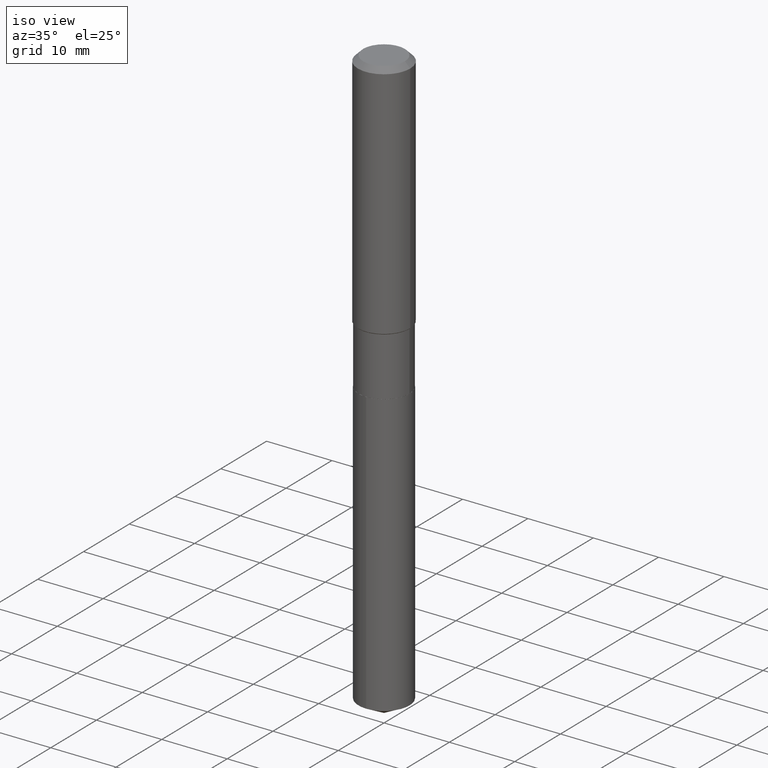
[diagram: clean part render]
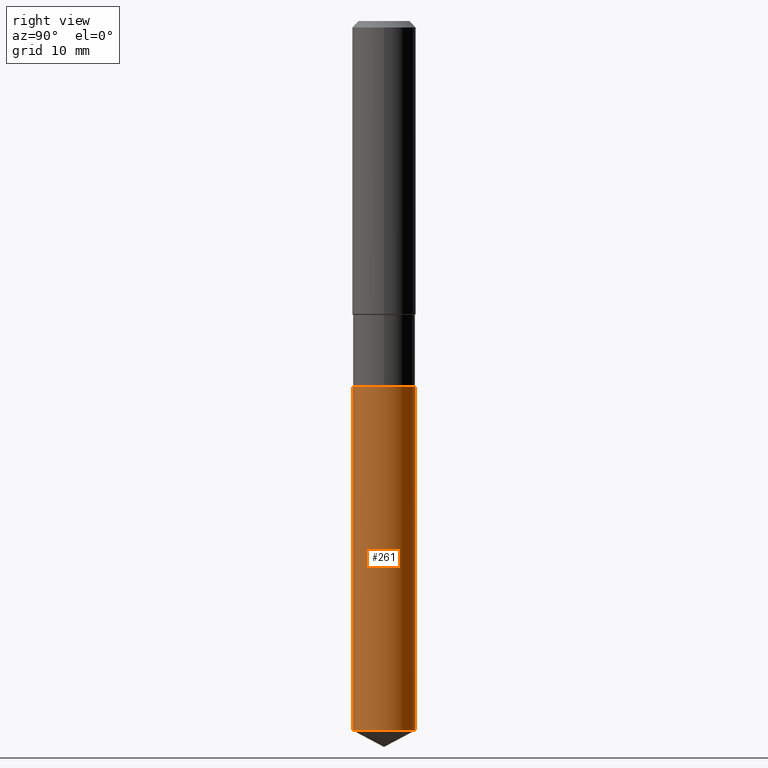
[diagram: tour spotlight — one face highlighted and labeled with its STEP entity id]
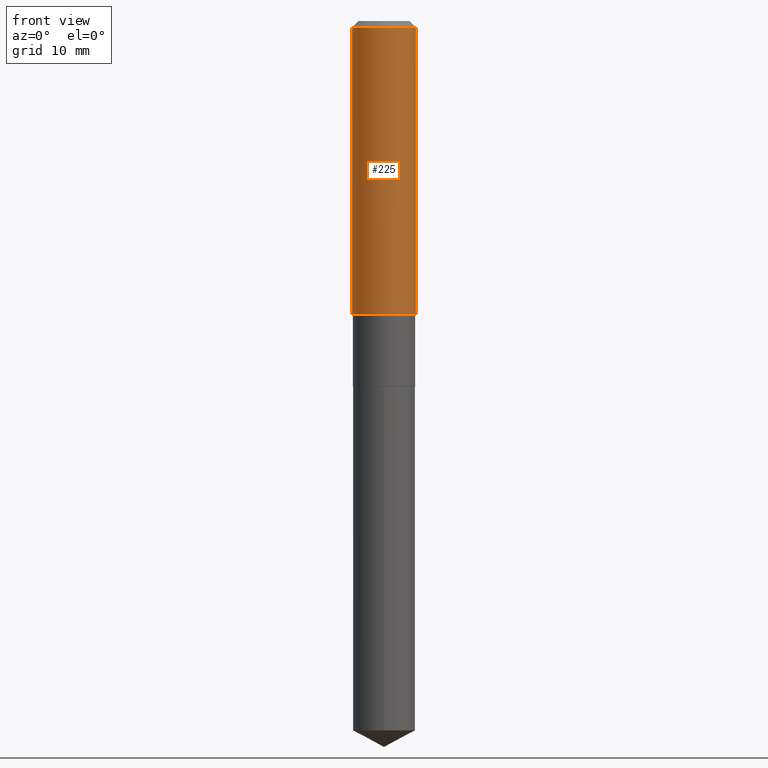
[diagram: tour spotlight — one face highlighted and labeled with its STEP entity id]
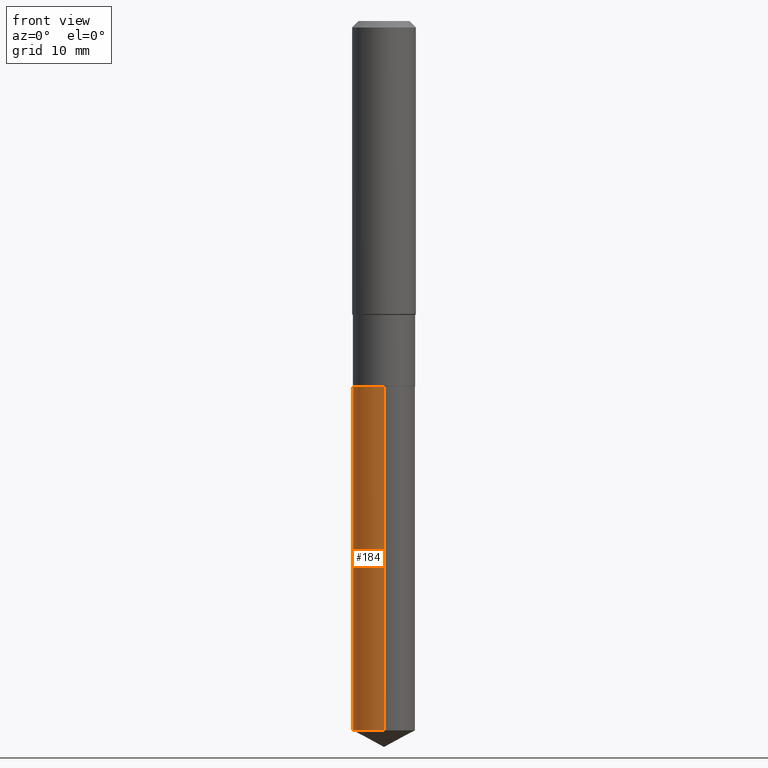
[diagram: tour spotlight — one face highlighted and labeled with its STEP entity id]
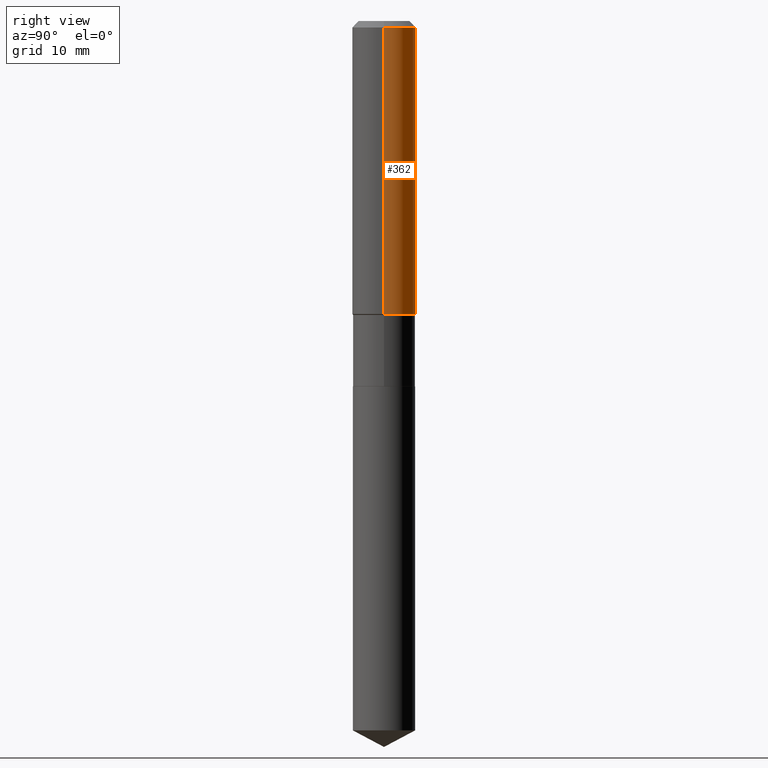
[diagram: tour spotlight — one face highlighted and labeled with its STEP entity id]
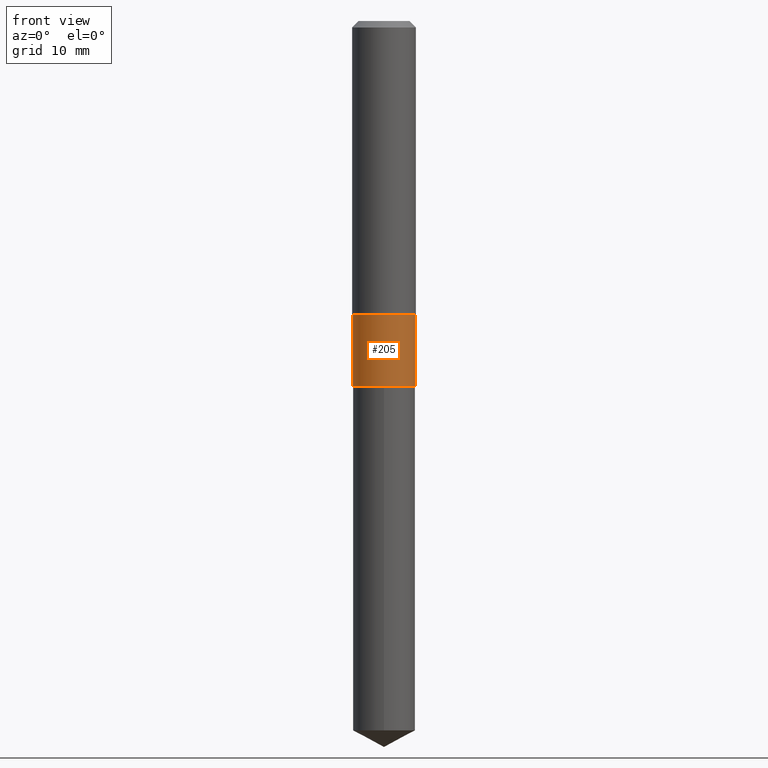
[diagram: tour spotlight — one face highlighted and labeled with its STEP entity id]
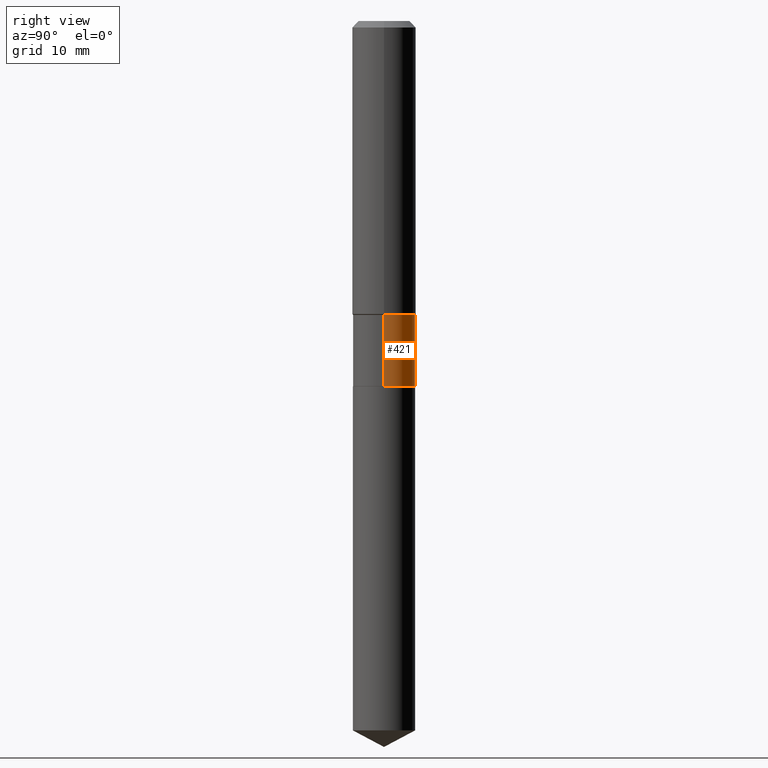
[diagram: tour spotlight — one face highlighted and labeled with its STEP entity id]
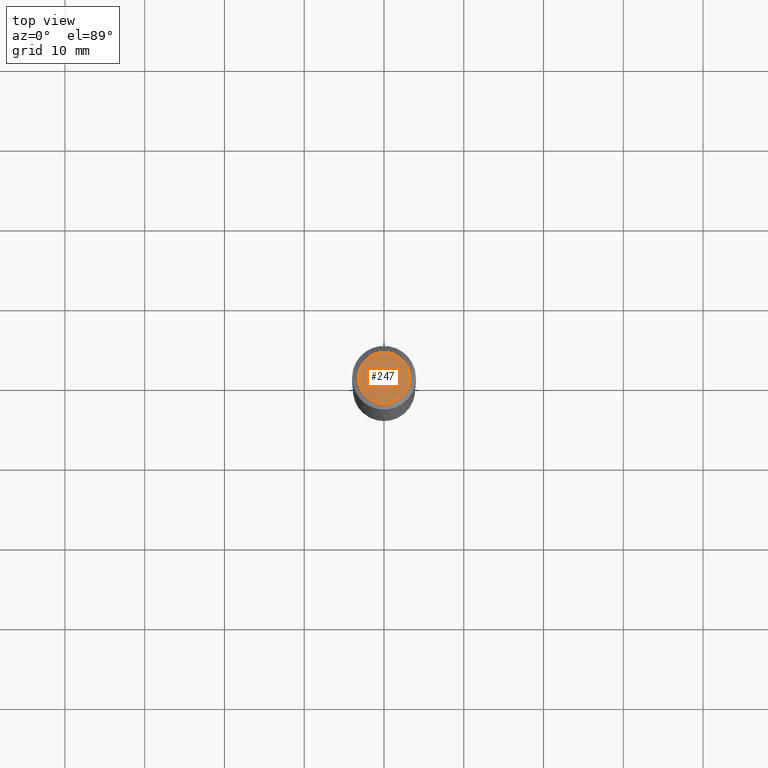
[diagram: tour spotlight — one face highlighted and labeled with its STEP entity id]
A machine part: a face-by-face anatomy tour. The part has 17 B-rep faces; the first image is the clean iso view, then the 7 largest visible faces are spotlighted one at a time (largest first), each with its STEP entity span.

Face 1 — right view, entity #261. In plain terms, the highlighted cylindrical surface (edge-blend (fillet) strip) has radius 3.9002 mm, axis along (-0, 0, 1).
Definition (entity closure, byte-faithful):
#22 = DIRECTION ( 'NONE',  ( -6.982962677686265133E-15, -1.000000000000000000, 3.558252026915353702E-15 ) ) ;
#34 = CARTESIAN_POINT ( 'NONE',  ( 4.409669351313038346E-29, -6.295839150201959750E-15, -1.803200000000000136 ) ) ;
#76 = CARTESIAN_POINT ( 'NONE',  ( 1.091038370759677758E-15, 0.1535499999999936915, -1.803200000000000580 ) ) ;
#98 = AXIS2_PLACEMENT_3D ( 'NONE', #206, #349, #22 ) ;
#105 = EDGE_CURVE ( 'NONE', #440, #300, #265, .T. ) ;
#112 = CARTESIAN_POINT ( 'NONE',  ( -1.072233919158640357E-15, -0.1535500000000122045, -3.501056016768379742 ) ) ;
#113 = DIRECTION ( 'NONE',  ( -2.445453554861553701E-29, 3.491503179606567708E-15, 1.000000000000000000 ) ) ;
#147 = AXIS2_PLACEMENT_3D ( 'NONE', #474, #438, #397 ) ;
#148 = AXIS2_PLACEMENT_3D ( 'NONE', #34, #449, #255 ) ;
#151 = ORIENTED_EDGE ( 'NONE', *, *, #187, .F. ) ;
#155 = ORIENTED_EDGE ( 'NONE', *, *, #307, .F. ) ;
#159 = LINE ( 'NONE', #460, #413 ) ;
#164 = LINE ( 'NONE', #76, #251 ) ;
#187 = EDGE_CURVE ( 'NONE', #274, #389, #291, .T. ) ;
#206 = CARTESIAN_POINT ( 'NONE',  ( 8.561697383162351005E-29, -1.222390883126290210E-14, -3.501056016768380186 ) ) ;
#236 = EDGE_LOOP ( 'NONE', ( #429, #312, #151, #155 ) ) ;
#244 = EDGE_CURVE ( 'NONE', #300, #389, #164, .T. ) ;
#251 = VECTOR ( 'NONE', #113, 39.37007874015748143 ) ;
#255 = DIRECTION ( 'NONE',  ( -6.982962677686266711E-15, -1.000000000000000000, 3.558252026915354491E-15 ) ) ;
#261 = ADVANCED_FACE ( 'NONE', ( #488 ), #486, .T. ) ;
#265 = CIRCLE ( 'NONE', #98, 0.1535500000000000198 ) ;
#274 = VERTEX_POINT ( 'NONE', #284 ) ;
#284 = CARTESIAN_POINT ( 'NONE',  ( -1.072233919158681970E-15, -0.1535500000000062926, -1.803199999999999470 ) ) ;
#291 = CIRCLE ( 'NONE', #147, 0.1535499999999999921 ) ;
#300 = VERTEX_POINT ( 'NONE', #347 ) ;
#307 = EDGE_CURVE ( 'NONE', #440, #274, #159, .T. ) ;
#312 = ORIENTED_EDGE ( 'NONE', *, *, #244, .T. ) ;
#328 = CARTESIAN_POINT ( 'NONE',  ( 1.091038370759719765E-15, 0.1535499999999937193, -1.803200000000000580 ) ) ;
#347 = CARTESIAN_POINT ( 'NONE',  ( 1.091038370759719173E-15, 0.1535499999999877796, -3.501056016768380630 ) ) ;
#349 = DIRECTION ( 'NONE',  ( -2.445453554861553701E-29, 3.491503179606567708E-15, 1.000000000000000000 ) ) ;
#389 = VERTEX_POINT ( 'NONE', #328 ) ;
#397 = DIRECTION ( 'NONE',  ( -6.982962677686266711E-15, -1.000000000000000000, 3.558252026915354491E-15 ) ) ;
#413 = VECTOR ( 'NONE', #431, 39.37007874015748143 ) ;
#429 = ORIENTED_EDGE ( 'NONE', *, *, #105, .T. ) ;
#431 = DIRECTION ( 'NONE',  ( -2.445453554861553701E-29, 3.491503179606567708E-15, 1.000000000000000000 ) ) ;
#438 = DIRECTION ( 'NONE',  ( -2.445453554861553701E-29, 3.491503179606567708E-15, 1.000000000000000000 ) ) ;
#440 = VERTEX_POINT ( 'NONE', #112 ) ;
#449 = DIRECTION ( 'NONE',  ( -2.445453554861553701E-29, 3.491503179606567708E-15, 1.000000000000000000 ) ) ;
#460 = CARTESIAN_POINT ( 'NONE',  ( -1.072233919158681970E-15, -0.1535500000000062926, -1.803199999999999470 ) ) ;
#474 = CARTESIAN_POINT ( 'NONE',  ( 4.409669351313038346E-29, -6.295839150201959750E-15, -1.803200000000000136 ) ) ;
#486 = CYLINDRICAL_SURFACE ( 'NONE', #148, 0.1535499999999999921 ) ;
#488 = FACE_OUTER_BOUND ( 'NONE', #236, .T. ) ;

Face 2 — front view, entity #225. In plain terms, the highlighted cylindrical surface (edge-blend (fillet) strip) has radius 4.0005 mm, axis along (-0, 0, 1).
Definition (entity closure, byte-faithful):
#25 = CARTESIAN_POINT ( 'NONE',  ( 0.1575000000000001676, -6.148673211769718717E-15, -1.446050000000000058 ) ) ;
#47 = CARTESIAN_POINT ( 'NONE',  ( 3.536270167184016952E-29, -5.048856590034130447E-15, -1.446050000000000058 ) ) ;
#50 = ORIENTED_EDGE ( 'NONE', *, *, #405, .T. ) ;
#55 = AXIS2_PLACEMENT_3D ( 'NONE', #47, #78, #380 ) ;
#61 = EDGE_CURVE ( 'NONE', #242, #282, #272, .T. ) ;
#71 = ORIENTED_EDGE ( 'NONE', *, *, #72, .T. ) ;
#72 = EDGE_CURVE ( 'NONE', #298, #444, #278, .T. ) ;
#78 = DIRECTION ( 'NONE',  ( -2.445468806185136597E-29, 3.491481338843145583E-15, 1.000000000000000000 ) ) ;
#91 = AXIS2_PLACEMENT_3D ( 'NONE', #366, #327, #111 ) ;
#111 = DIRECTION ( 'NONE',  ( 1.000000000000000000, -6.982962677686267499E-15, 4.876176775795936353E-29 ) ) ;
#133 = CARTESIAN_POINT ( 'NONE',  ( 7.703226739483226971E-31, -1.099816621735597538E-16, -0.03150000000000019451 ) ) ;
#135 = CARTESIAN_POINT ( 'NONE',  ( -0.1575000000000000011, -1.460314317281686560E-15, -0.03150000000000019451 ) ) ;
#142 = CIRCLE ( 'NONE', #193, 0.1575000000000000011 ) ;
#190 = CYLINDRICAL_SURFACE ( 'NONE', #91, 0.1575000000000000844 ) ;
#193 = AXIS2_PLACEMENT_3D ( 'NONE', #133, #394, #480 ) ;
#212 = VECTOR ( 'NONE', #342, 39.37007874015748143 ) ;
#224 = FACE_OUTER_BOUND ( 'NONE', #325, .T. ) ;
#225 = ADVANCED_FACE ( 'NONE', ( #224 ), #190, .T. ) ;
#235 = CARTESIAN_POINT ( 'NONE',  ( -0.1575000000000000844, 1.119104808822158392E-15, -7.747322767151481189E-30 ) ) ;
#242 = VERTEX_POINT ( 'NONE', #369 ) ;
#272 = LINE ( 'NONE', #235, #418 ) ;
#277 = EDGE_CURVE ( 'NONE', #282, #444, #142, .T. ) ;
#278 = LINE ( 'NONE', #388, #212 ) ;
#282 = VERTEX_POINT ( 'NONE', #135 ) ;
#297 = CARTESIAN_POINT ( 'NONE',  ( 0.1575000000000000011, -1.209798283909146741E-15, -0.03150000000000019451 ) ) ;
#298 = VERTEX_POINT ( 'NONE', #25 ) ;
#325 = EDGE_LOOP ( 'NONE', ( #477, #50, #71, #391 ) ) ;
#327 = DIRECTION ( 'NONE',  ( -2.445468806185136597E-29, 3.491481338843145583E-15, 1.000000000000000000 ) ) ;
#342 = DIRECTION ( 'NONE',  ( -2.445468806185136877E-29, 3.491481338843145188E-15, 1.000000000000000000 ) ) ;
#366 = CARTESIAN_POINT ( 'NONE',  ( 0.000000000000000000, 0.000000000000000000, 0.000000000000000000 ) ) ;
#369 = CARTESIAN_POINT ( 'NONE',  ( -0.1575000000000001676, -3.929751781211971266E-15, -1.446050000000000058 ) ) ;
#380 = DIRECTION ( 'NONE',  ( 1.000000000000000000, -6.982962677686267499E-15, 0.000000000000000000 ) ) ;
#388 = CARTESIAN_POINT ( 'NONE',  ( 0.1575000000000000844, -1.099816621735587677E-15, 7.679978421878603638E-30 ) ) ;
#391 = ORIENTED_EDGE ( 'NONE', *, *, #277, .F. ) ;
#394 = DIRECTION ( 'NONE',  ( -2.445468806185136597E-29, 3.491481338843145583E-15, 1.000000000000000000 ) ) ;
#405 = EDGE_CURVE ( 'NONE', #242, #298, #456, .T. ) ;
#418 = VECTOR ( 'NONE', #479, 39.37007874015748143 ) ;
#444 = VERTEX_POINT ( 'NONE', #297 ) ;
#456 = CIRCLE ( 'NONE', #55, 0.1575000000000001676 ) ;
#477 = ORIENTED_EDGE ( 'NONE', *, *, #61, .F. ) ;
#479 = DIRECTION ( 'NONE',  ( -2.445468806185136877E-29, 3.491481338843145188E-15, 1.000000000000000000 ) ) ;
#480 = DIRECTION ( 'NONE',  ( 1.000000000000000000, -6.982962677686265922E-15, 0.000000000000000000 ) ) ;

Face 3 — front view, entity #184. In plain terms, the highlighted cylindrical surface (edge-blend (fillet) strip) has radius 3.9002 mm, axis along (-0, 0, 1).
Definition (entity closure, byte-faithful):
#10 = CARTESIAN_POINT ( 'NONE',  ( 8.561697383162351005E-29, -1.222390883126290210E-14, -3.501056016768380186 ) ) ;
#24 = CYLINDRICAL_SURFACE ( 'NONE', #354, 0.1535499999999999921 ) ;
#56 = FACE_OUTER_BOUND ( 'NONE', #241, .T. ) ;
#76 = CARTESIAN_POINT ( 'NONE',  ( 1.091038370759677758E-15, 0.1535499999999936915, -1.803200000000000580 ) ) ;
#81 = CIRCLE ( 'NONE', #130, 0.1535500000000000198 ) ;
#97 = DIRECTION ( 'NONE',  ( -6.982962677686266711E-15, -1.000000000000000000, 3.558252026915354491E-15 ) ) ;
#112 = CARTESIAN_POINT ( 'NONE',  ( -1.072233919158640357E-15, -0.1535500000000122045, -3.501056016768379742 ) ) ;
#113 = DIRECTION ( 'NONE',  ( -2.445453554861553701E-29, 3.491503179606567708E-15, 1.000000000000000000 ) ) ;
#118 = ORIENTED_EDGE ( 'NONE', *, *, #314, .F. ) ;
#122 = DIRECTION ( 'NONE',  ( -6.982962677686266711E-15, -1.000000000000000000, 3.558252026915354491E-15 ) ) ;
#130 = AXIS2_PLACEMENT_3D ( 'NONE', #10, #308, #171 ) ;
#150 = ORIENTED_EDGE ( 'NONE', *, *, #301, .T. ) ;
#159 = LINE ( 'NONE', #460, #413 ) ;
#164 = LINE ( 'NONE', #76, #251 ) ;
#171 = DIRECTION ( 'NONE',  ( -6.982962677686265133E-15, -1.000000000000000000, 3.558252026915353702E-15 ) ) ;
#176 = CARTESIAN_POINT ( 'NONE',  ( 4.409669351313038346E-29, -6.295839150201959750E-15, -1.803200000000000136 ) ) ;
#184 = ADVANCED_FACE ( 'NONE', ( #56 ), #24, .T. ) ;
#204 = CARTESIAN_POINT ( 'NONE',  ( 4.409669351313038346E-29, -6.295839150201959750E-15, -1.803200000000000136 ) ) ;
#228 = AXIS2_PLACEMENT_3D ( 'NONE', #204, #451, #97 ) ;
#241 = EDGE_LOOP ( 'NONE', ( #376, #150, #458, #118 ) ) ;
#244 = EDGE_CURVE ( 'NONE', #300, #389, #164, .T. ) ;
#251 = VECTOR ( 'NONE', #113, 39.37007874015748143 ) ;
#274 = VERTEX_POINT ( 'NONE', #284 ) ;
#284 = CARTESIAN_POINT ( 'NONE',  ( -1.072233919158681970E-15, -0.1535500000000062926, -1.803199999999999470 ) ) ;
#300 = VERTEX_POINT ( 'NONE', #347 ) ;
#301 = EDGE_CURVE ( 'NONE', #300, #440, #81, .T. ) ;
#307 = EDGE_CURVE ( 'NONE', #440, #274, #159, .T. ) ;
#308 = DIRECTION ( 'NONE',  ( -2.445453554861553701E-29, 3.491503179606567708E-15, 1.000000000000000000 ) ) ;
#314 = EDGE_CURVE ( 'NONE', #389, #274, #356, .T. ) ;
#315 = DIRECTION ( 'NONE',  ( -2.445453554861553701E-29, 3.491503179606567708E-15, 1.000000000000000000 ) ) ;
#328 = CARTESIAN_POINT ( 'NONE',  ( 1.091038370759719765E-15, 0.1535499999999937193, -1.803200000000000580 ) ) ;
#347 = CARTESIAN_POINT ( 'NONE',  ( 1.091038370759719173E-15, 0.1535499999999877796, -3.501056016768380630 ) ) ;
#354 = AXIS2_PLACEMENT_3D ( 'NONE', #176, #315, #122 ) ;
#356 = CIRCLE ( 'NONE', #228, 0.1535499999999999921 ) ;
#376 = ORIENTED_EDGE ( 'NONE', *, *, #244, .F. ) ;
#389 = VERTEX_POINT ( 'NONE', #328 ) ;
#413 = VECTOR ( 'NONE', #431, 39.37007874015748143 ) ;
#431 = DIRECTION ( 'NONE',  ( -2.445453554861553701E-29, 3.491503179606567708E-15, 1.000000000000000000 ) ) ;
#440 = VERTEX_POINT ( 'NONE', #112 ) ;
#451 = DIRECTION ( 'NONE',  ( -2.445453554861553701E-29, 3.491503179606567708E-15, 1.000000000000000000 ) ) ;
#458 = ORIENTED_EDGE ( 'NONE', *, *, #307, .T. ) ;
#460 = CARTESIAN_POINT ( 'NONE',  ( -1.072233919158681970E-15, -0.1535500000000062926, -1.803199999999999470 ) ) ;

Face 4 — right view, entity #362. In plain terms, the highlighted cylindrical surface (edge-blend (fillet) strip) has radius 4.0005 mm, axis along (-0, 0, 1).
Definition (entity closure, byte-faithful):
#12 = AXIS2_PLACEMENT_3D ( 'NONE', #316, #89, #128 ) ;
#17 = DIRECTION ( 'NONE',  ( 1.000000000000000000, -6.982962677686267499E-15, 0.000000000000000000 ) ) ;
#18 = ORIENTED_EDGE ( 'NONE', *, *, #163, .F. ) ;
#25 = CARTESIAN_POINT ( 'NONE',  ( 0.1575000000000001676, -6.148673211769718717E-15, -1.446050000000000058 ) ) ;
#46 = ORIENTED_EDGE ( 'NONE', *, *, #72, .F. ) ;
#51 = FACE_OUTER_BOUND ( 'NONE', #426, .T. ) ;
#61 = EDGE_CURVE ( 'NONE', #242, #282, #272, .T. ) ;
#72 = EDGE_CURVE ( 'NONE', #298, #444, #278, .T. ) ;
#89 = DIRECTION ( 'NONE',  ( -2.445468806185136597E-29, 3.491481338843145583E-15, 1.000000000000000000 ) ) ;
#128 = DIRECTION ( 'NONE',  ( 1.000000000000000000, -6.982962677686265922E-15, 0.000000000000000000 ) ) ;
#135 = CARTESIAN_POINT ( 'NONE',  ( -0.1575000000000000011, -1.460314317281686560E-15, -0.03150000000000019451 ) ) ;
#143 = EDGE_CURVE ( 'NONE', #298, #242, #439, .T. ) ;
#163 = EDGE_CURVE ( 'NONE', #444, #282, #318, .T. ) ;
#207 = DIRECTION ( 'NONE',  ( -2.445468806185136597E-29, 3.491481338843145583E-15, 1.000000000000000000 ) ) ;
#212 = VECTOR ( 'NONE', #342, 39.37007874015748143 ) ;
#221 = AXIS2_PLACEMENT_3D ( 'NONE', #434, #207, #17 ) ;
#226 = DIRECTION ( 'NONE',  ( -2.445468806185136597E-29, 3.491481338843145583E-15, 1.000000000000000000 ) ) ;
#235 = CARTESIAN_POINT ( 'NONE',  ( -0.1575000000000000844, 1.119104808822158392E-15, -7.747322767151481189E-30 ) ) ;
#242 = VERTEX_POINT ( 'NONE', #369 ) ;
#272 = LINE ( 'NONE', #235, #418 ) ;
#278 = LINE ( 'NONE', #388, #212 ) ;
#282 = VERTEX_POINT ( 'NONE', #135 ) ;
#295 = ORIENTED_EDGE ( 'NONE', *, *, #61, .T. ) ;
#297 = CARTESIAN_POINT ( 'NONE',  ( 0.1575000000000000011, -1.209798283909146741E-15, -0.03150000000000019451 ) ) ;
#298 = VERTEX_POINT ( 'NONE', #25 ) ;
#316 = CARTESIAN_POINT ( 'NONE',  ( 7.703226739483226971E-31, -1.099816621735597538E-16, -0.03150000000000019451 ) ) ;
#318 = CIRCLE ( 'NONE', #12, 0.1575000000000000011 ) ;
#333 = DIRECTION ( 'NONE',  ( 1.000000000000000000, -6.982962677686267499E-15, 4.876176775795936353E-29 ) ) ;
#336 = ORIENTED_EDGE ( 'NONE', *, *, #143, .T. ) ;
#342 = DIRECTION ( 'NONE',  ( -2.445468806185136877E-29, 3.491481338843145188E-15, 1.000000000000000000 ) ) ;
#344 = CYLINDRICAL_SURFACE ( 'NONE', #355, 0.1575000000000000844 ) ;
#355 = AXIS2_PLACEMENT_3D ( 'NONE', #416, #226, #333 ) ;
#362 = ADVANCED_FACE ( 'NONE', ( #51 ), #344, .T. ) ;
#369 = CARTESIAN_POINT ( 'NONE',  ( -0.1575000000000001676, -3.929751781211971266E-15, -1.446050000000000058 ) ) ;
#388 = CARTESIAN_POINT ( 'NONE',  ( 0.1575000000000000844, -1.099816621735587677E-15, 7.679978421878603638E-30 ) ) ;
#416 = CARTESIAN_POINT ( 'NONE',  ( 0.000000000000000000, 0.000000000000000000, 0.000000000000000000 ) ) ;
#418 = VECTOR ( 'NONE', #479, 39.37007874015748143 ) ;
#426 = EDGE_LOOP ( 'NONE', ( #336, #295, #18, #46 ) ) ;
#434 = CARTESIAN_POINT ( 'NONE',  ( 3.536270167184016952E-29, -5.048856590034130447E-15, -1.446050000000000058 ) ) ;
#439 = CIRCLE ( 'NONE', #221, 0.1575000000000001676 ) ;
#444 = VERTEX_POINT ( 'NONE', #297 ) ;
#479 = DIRECTION ( 'NONE',  ( -2.445468806185136877E-29, 3.491481338843145188E-15, 1.000000000000000000 ) ) ;

Face 5 — front view, entity #205. In plain terms, the highlighted cylindrical surface (edge-blend (fillet) strip) has radius 3.9002 mm, axis along (-0, 0, 1).
Definition (entity closure, byte-faithful):
#1 = EDGE_CURVE ( 'NONE', #166, #127, #35, .T. ) ;
#35 = CIRCLE ( 'NONE', #102, 0.1535499999999999365 ) ;
#43 = ORIENTED_EDGE ( 'NONE', *, *, #407, .T. ) ;
#45 = DIRECTION ( 'NONE',  ( -2.445468806185136597E-29, 3.491481338843145583E-15, 1.000000000000000000 ) ) ;
#59 = DIRECTION ( 'NONE',  ( 1.000000000000000000, -6.982962677686265133E-15, 0.000000000000000000 ) ) ;
#62 = CARTESIAN_POINT ( 'NONE',  ( 4.408446616909946105E-29, -6.294093409532539036E-15, -1.802700000000000191 ) ) ;
#77 = ORIENTED_EDGE ( 'NONE', *, *, #180, .T. ) ;
#79 = CARTESIAN_POINT ( 'NONE',  ( 0.000000000000000000, 0.000000000000000000, 0.000000000000000000 ) ) ;
#86 = CARTESIAN_POINT ( 'NONE',  ( 0.1535499999999999643, -1.072233919158725949E-15, 7.487369439234657779E-30 ) ) ;
#88 = CARTESIAN_POINT ( 'NONE',  ( 3.545929768968448850E-29, -5.062647941322561509E-15, -1.450000000000000178 ) ) ;
#93 = DIRECTION ( 'NONE',  ( 1.000000000000000000, -6.982962677686269077E-15, 0.000000000000000000 ) ) ;
#102 = AXIS2_PLACEMENT_3D ( 'NONE', #88, #201, #59 ) ;
#117 = DIRECTION ( 'NONE',  ( 1.000000000000000000, -6.982962677686266711E-15, 4.876176775795935793E-29 ) ) ;
#127 = VERTEX_POINT ( 'NONE', #424 ) ;
#145 = CARTESIAN_POINT ( 'NONE',  ( -0.1535499999999999365, -4.587332304667917085E-15, -1.450000000000000178 ) ) ;
#156 = CARTESIAN_POINT ( 'NONE',  ( -0.1535499999999999643, 1.091038370759633582E-15, -7.553024831086406471E-30 ) ) ;
#158 = LINE ( 'NONE', #86, #319 ) ;
#166 = VERTEX_POINT ( 'NONE', #145 ) ;
#174 = VECTOR ( 'NONE', #306, 39.37007874015748143 ) ;
#180 = EDGE_CURVE ( 'NONE', #322, #370, #340, .T. ) ;
#191 = CARTESIAN_POINT ( 'NONE',  ( 0.1535499999999999921, -7.366327328691265182E-15, -1.802700000000000191 ) ) ;
#201 = DIRECTION ( 'NONE',  ( -2.445468806185136597E-29, 3.491481338843145583E-15, 1.000000000000000000 ) ) ;
#205 = ADVANCED_FACE ( 'NONE', ( #465 ), #467, .T. ) ;
#210 = ORIENTED_EDGE ( 'NONE', *, *, #446, .F. ) ;
#231 = EDGE_LOOP ( 'NONE', ( #210, #77, #43, #375 ) ) ;
#234 = LINE ( 'NONE', #156, #174 ) ;
#306 = DIRECTION ( 'NONE',  ( -2.445468806185136877E-29, 3.491481338843145188E-15, 1.000000000000000000 ) ) ;
#319 = VECTOR ( 'NONE', #468, 39.37007874015748143 ) ;
#322 = VERTEX_POINT ( 'NONE', #411 ) ;
#340 = CIRCLE ( 'NONE', #386, 0.1535499999999999921 ) ;
#370 = VERTEX_POINT ( 'NONE', #191 ) ;
#375 = ORIENTED_EDGE ( 'NONE', *, *, #1, .F. ) ;
#381 = DIRECTION ( 'NONE',  ( -2.445468806185136597E-29, 3.491481338843145583E-15, 1.000000000000000000 ) ) ;
#386 = AXIS2_PLACEMENT_3D ( 'NONE', #62, #381, #93 ) ;
#407 = EDGE_CURVE ( 'NONE', #370, #127, #158, .T. ) ;
#411 = CARTESIAN_POINT ( 'NONE',  ( -0.1535499999999999921, -4.587332304667917085E-15, -1.802700000000000191 ) ) ;
#424 = CARTESIAN_POINT ( 'NONE',  ( 0.1535499999999999365, -6.134881860481286866E-15, -1.450000000000000178 ) ) ;
#432 = AXIS2_PLACEMENT_3D ( 'NONE', #79, #45, #117 ) ;
#446 = EDGE_CURVE ( 'NONE', #322, #166, #234, .T. ) ;
#465 = FACE_OUTER_BOUND ( 'NONE', #231, .T. ) ;
#467 = CYLINDRICAL_SURFACE ( 'NONE', #432, 0.1535499999999999643 ) ;
#468 = DIRECTION ( 'NONE',  ( -2.445468806185136877E-29, 3.491481338843145188E-15, 1.000000000000000000 ) ) ;

Face 6 — right view, entity #421. In plain terms, the highlighted cylindrical surface (edge-blend (fillet) strip) has radius 3.9002 mm, axis along (-0, 0, 1).
Definition (entity closure, byte-faithful):
#11 = DIRECTION ( 'NONE',  ( 1.000000000000000000, -6.982962677686265133E-15, 0.000000000000000000 ) ) ;
#27 = AXIS2_PLACEMENT_3D ( 'NONE', #423, #473, #475 ) ;
#42 = ORIENTED_EDGE ( 'NONE', *, *, #452, .T. ) ;
#44 = FACE_OUTER_BOUND ( 'NONE', #289, .T. ) ;
#80 = ORIENTED_EDGE ( 'NONE', *, *, #446, .T. ) ;
#86 = CARTESIAN_POINT ( 'NONE',  ( 0.1535499999999999643, -1.072233919158725949E-15, 7.487369439234657779E-30 ) ) ;
#115 = DIRECTION ( 'NONE',  ( -2.445468806185136597E-29, 3.491481338843145583E-15, 1.000000000000000000 ) ) ;
#119 = CYLINDRICAL_SURFACE ( 'NONE', #27, 0.1535499999999999643 ) ;
#127 = VERTEX_POINT ( 'NONE', #424 ) ;
#145 = CARTESIAN_POINT ( 'NONE',  ( -0.1535499999999999365, -4.587332304667917085E-15, -1.450000000000000178 ) ) ;
#156 = CARTESIAN_POINT ( 'NONE',  ( -0.1535499999999999643, 1.091038370759633582E-15, -7.553024831086406471E-30 ) ) ;
#158 = LINE ( 'NONE', #86, #319 ) ;
#166 = VERTEX_POINT ( 'NONE', #145 ) ;
#168 = ORIENTED_EDGE ( 'NONE', *, *, #461, .F. ) ;
#174 = VECTOR ( 'NONE', #306, 39.37007874015748143 ) ;
#191 = CARTESIAN_POINT ( 'NONE',  ( 0.1535499999999999921, -7.366327328691265182E-15, -1.802700000000000191 ) ) ;
#199 = DIRECTION ( 'NONE',  ( -2.445468806185136597E-29, 3.491481338843145583E-15, 1.000000000000000000 ) ) ;
#234 = LINE ( 'NONE', #156, #174 ) ;
#263 = DIRECTION ( 'NONE',  ( 1.000000000000000000, -6.982962677686269077E-15, 0.000000000000000000 ) ) ;
#289 = EDGE_LOOP ( 'NONE', ( #42, #80, #168, #290 ) ) ;
#290 = ORIENTED_EDGE ( 'NONE', *, *, #407, .F. ) ;
#292 = CIRCLE ( 'NONE', #484, 0.1535499999999999921 ) ;
#306 = DIRECTION ( 'NONE',  ( -2.445468806185136877E-29, 3.491481338843145188E-15, 1.000000000000000000 ) ) ;
#309 = CARTESIAN_POINT ( 'NONE',  ( 3.545929768968448850E-29, -5.062647941322561509E-15, -1.450000000000000178 ) ) ;
#319 = VECTOR ( 'NONE', #468, 39.37007874015748143 ) ;
#322 = VERTEX_POINT ( 'NONE', #411 ) ;
#324 = AXIS2_PLACEMENT_3D ( 'NONE', #309, #199, #11 ) ;
#341 = CIRCLE ( 'NONE', #324, 0.1535499999999999365 ) ;
#370 = VERTEX_POINT ( 'NONE', #191 ) ;
#384 = CARTESIAN_POINT ( 'NONE',  ( 4.408446616909946105E-29, -6.294093409532539036E-15, -1.802700000000000191 ) ) ;
#407 = EDGE_CURVE ( 'NONE', #370, #127, #158, .T. ) ;
#411 = CARTESIAN_POINT ( 'NONE',  ( -0.1535499999999999921, -4.587332304667917085E-15, -1.802700000000000191 ) ) ;
#421 = ADVANCED_FACE ( 'NONE', ( #44 ), #119, .T. ) ;
#423 = CARTESIAN_POINT ( 'NONE',  ( 0.000000000000000000, 0.000000000000000000, 0.000000000000000000 ) ) ;
#424 = CARTESIAN_POINT ( 'NONE',  ( 0.1535499999999999365, -6.134881860481286866E-15, -1.450000000000000178 ) ) ;
#446 = EDGE_CURVE ( 'NONE', #322, #166, #234, .T. ) ;
#452 = EDGE_CURVE ( 'NONE', #370, #322, #292, .T. ) ;
#461 = EDGE_CURVE ( 'NONE', #127, #166, #341, .T. ) ;
#468 = DIRECTION ( 'NONE',  ( -2.445468806185136877E-29, 3.491481338843145188E-15, 1.000000000000000000 ) ) ;
#473 = DIRECTION ( 'NONE',  ( -2.445468806185136597E-29, 3.491481338843145583E-15, 1.000000000000000000 ) ) ;
#475 = DIRECTION ( 'NONE',  ( 1.000000000000000000, -6.982962677686266711E-15, 4.876176775795935793E-29 ) ) ;
#484 = AXIS2_PLACEMENT_3D ( 'NONE', #384, #115, #263 ) ;

Face 7 — top view, entity #247. In plain terms, the highlighted planar face has unit normal (0, -0, -1).
Definition (entity closure, byte-faithful):
#7 = FACE_OUTER_BOUND ( 'NONE', #33, .T. ) ;
#31 = DIRECTION ( 'NONE',  ( -2.445468806185136597E-29, 3.491481338843145583E-15, 1.000000000000000000 ) ) ;
#33 = EDGE_LOOP ( 'NONE', ( #334, #114 ) ) ;
#84 = CARTESIAN_POINT ( 'NONE',  ( -9.439721640706201686E-47, 1.347742071746726764E-32, 3.860086710912459732E-18 ) ) ;
#114 = ORIENTED_EDGE ( 'NONE', *, *, #427, .T. ) ;
#121 = PLANE ( 'NONE',  #478 ) ;
#149 = CARTESIAN_POINT ( 'NONE',  ( -9.439721640706201686E-47, 1.347742071746726764E-32, 3.860086710912459732E-18 ) ) ;
#157 = CARTESIAN_POINT ( 'NONE',  ( -4.719860820353100843E-47, 6.738710358733633822E-33, 1.930043355456229866E-18 ) ) ;
#195 = CARTESIAN_POINT ( 'NONE',  ( -0.1260000000000000009, 9.348441284752484904E-16, 3.860086710906114178E-18 ) ) ;
#218 = EDGE_CURVE ( 'NONE', #382, #374, #222, .T. ) ;
#222 = CIRCLE ( 'NONE', #238, 0.1260000000000000009 ) ;
#238 = AXIS2_PLACEMENT_3D ( 'NONE', #149, #31, #457 ) ;
#247 = ADVANCED_FACE ( 'NONE', ( #7 ), #121, .F. ) ;
#268 = CARTESIAN_POINT ( 'NONE',  ( 0.1260000000000000009, -1.027466422270894443E-15, 3.860086710919128072E-18 ) ) ;
#334 = ORIENTED_EDGE ( 'NONE', *, *, #218, .T. ) ;
#338 = DIRECTION ( 'NONE',  ( -2.445468806185136597E-29, 3.491481338843145583E-15, 1.000000000000000000 ) ) ;
#339 = DIRECTION ( 'NONE',  ( -1.000000000000000000, 6.982962677686265922E-15, -4.876176775795935793E-29 ) ) ;
#374 = VERTEX_POINT ( 'NONE', #268 ) ;
#382 = VERTEX_POINT ( 'NONE', #195 ) ;
#387 = CIRCLE ( 'NONE', #470, 0.1260000000000000009 ) ;
#414 = DIRECTION ( 'NONE',  ( 1.000000000000000000, -6.982962677686265922E-15, 4.876281427513067258E-29 ) ) ;
#425 = DIRECTION ( 'NONE',  ( 2.438088387897960049E-29, -3.491481338843145188E-15, -1.000000000000000000 ) ) ;
#427 = EDGE_CURVE ( 'NONE', #374, #382, #387, .T. ) ;
#457 = DIRECTION ( 'NONE',  ( 1.000000000000000000, -6.982962677686265922E-15, 4.876281427513067258E-29 ) ) ;
#470 = AXIS2_PLACEMENT_3D ( 'NONE', #84, #338, #414 ) ;
#478 = AXIS2_PLACEMENT_3D ( 'NONE', #157, #425, #339 ) ;